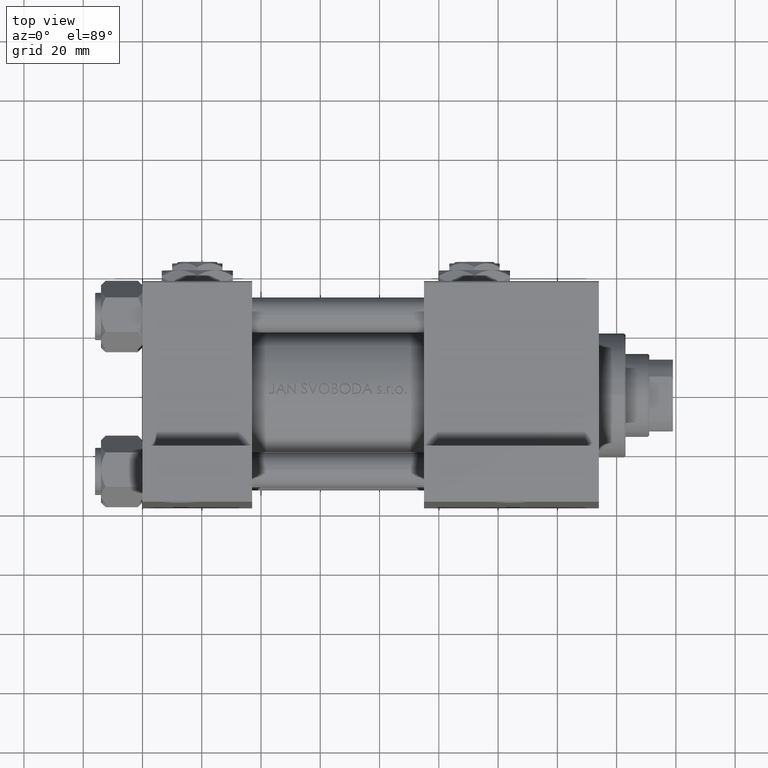
[diagram: clean part render]
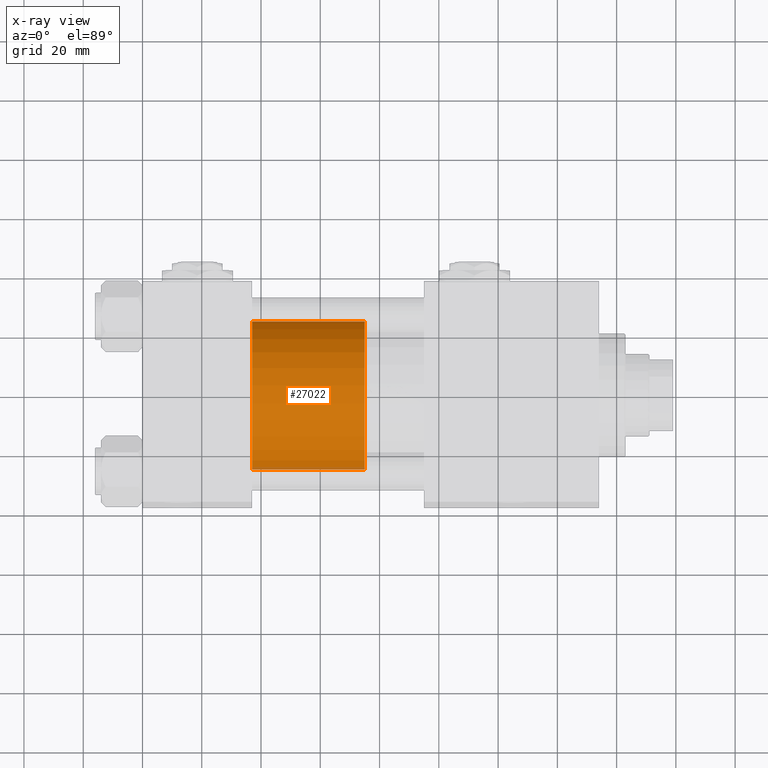
[diagram: x-ray — body ghosted, one internal face saturated and labeled with its STEP entity id]
A machine part, top view, then the same camera in x-ray: the body is ghosted and one INTERNAL B-rep face — a face not visible from any outside direction — is saturated and labeled: STEP entity #27022.
In plain terms, the highlighted cylindrical surface (partial cylindrical patch) has radius 25 mm, axis along (-1, 0, 0).
Its self-contained STEP definition (entity closure, byte-faithful):
#3266 = AXIS2_PLACEMENT_3D ( 'NONE', #31160, #26955, #3887 ) ;
#3887 = DIRECTION ( 'NONE',  ( 1.000000000000000000, 0.000000000000000000, 0.000000000000000000 ) ) ;
#3985 = EDGE_CURVE ( 'NONE', #11235, #26495, #34001, .T. ) ;
#9428 = EDGE_CURVE ( 'NONE', #26495, #36863, #45232, .T. ) ;
#11163 = CIRCLE ( 'NONE', #27790, 25.00000000000000000 ) ;
#11235 = VERTEX_POINT ( 'NONE', #24784 ) ;
#13615 = VECTOR ( 'NONE', #22166, 1000.000000000000000 ) ;
#15176 = DIRECTION ( 'NONE',  ( -0.000000000000000000, -0.000000000000000000, -1.000000000000000000 ) ) ;
#15187 = CARTESIAN_POINT ( 'NONE',  ( 0.000000000000000000, 0.000000000000000000, 38.00000000000000000 ) ) ;
#15993 = AXIS2_PLACEMENT_3D ( 'NONE', #22163, #26119, #48917 ) ;
#21404 = VECTOR ( 'NONE', #15176, 1000.000000000000000 ) ;
#22163 = CARTESIAN_POINT ( 'NONE',  ( 0.000000000000000000, 0.000000000000000000, 38.00000000000000000 ) ) ;
#22166 = DIRECTION ( 'NONE',  ( -0.000000000000000000, -0.000000000000000000, -1.000000000000000000 ) ) ;
#22842 = CARTESIAN_POINT ( 'NONE',  ( 25.00000000000000000, 3.061616997868383043E-15, 0.000000000000000000 ) ) ;
#23350 = DIRECTION ( 'NONE',  ( 1.000000000000000000, 0.000000000000000000, 0.000000000000000000 ) ) ;
#24784 = CARTESIAN_POINT ( 'NONE',  ( -25.00000000000000000, 0.000000000000000000, 38.00000000000000000 ) ) ;
#25880 = CARTESIAN_POINT ( 'NONE',  ( 25.00000000000000000, 3.061616997868383043E-15, 38.00000000000000000 ) ) ;
#26119 = DIRECTION ( 'NONE',  ( -0.000000000000000000, -0.000000000000000000, -1.000000000000000000 ) ) ;
#26495 = VERTEX_POINT ( 'NONE', #31442 ) ;
#26955 = DIRECTION ( 'NONE',  ( 0.000000000000000000, 0.000000000000000000, 1.000000000000000000 ) ) ;
#27022 = ADVANCED_FACE ( 'NONE', ( #29608 ), #40520, .T. ) ;
#27790 = AXIS2_PLACEMENT_3D ( 'NONE', #15187, #30298, #23350 ) ;
#28576 = EDGE_CURVE ( 'NONE', #11235, #44386, #11163, .T. ) ;
#29116 = EDGE_LOOP ( 'NONE', ( #38826, #35046, #48331, #30562 ) ) ;
#29608 = FACE_OUTER_BOUND ( 'NONE', #29116, .T. ) ;
#30298 = DIRECTION ( 'NONE',  ( 0.000000000000000000, 0.000000000000000000, 1.000000000000000000 ) ) ;
#30562 = ORIENTED_EDGE ( 'NONE', *, *, #9428, .T. ) ;
#30824 = EDGE_CURVE ( 'NONE', #44386, #36863, #48921, .T. ) ;
#31160 = CARTESIAN_POINT ( 'NONE',  ( 0.000000000000000000, 0.000000000000000000, 0.000000000000000000 ) ) ;
#31442 = CARTESIAN_POINT ( 'NONE',  ( -25.00000000000000000, 0.000000000000000000, 0.000000000000000000 ) ) ;
#34001 = LINE ( 'NONE', #42175, #21404 ) ;
#35046 = ORIENTED_EDGE ( 'NONE', *, *, #28576, .F. ) ;
#36863 = VERTEX_POINT ( 'NONE', #22842 ) ;
#38826 = ORIENTED_EDGE ( 'NONE', *, *, #30824, .F. ) ;
#40520 = CYLINDRICAL_SURFACE ( 'NONE', #15993, 25.00000000000000000 ) ;
#42175 = CARTESIAN_POINT ( 'NONE',  ( -25.00000000000000000, 0.000000000000000000, 38.00000000000000000 ) ) ;
#43304 = CARTESIAN_POINT ( 'NONE',  ( 25.00000000000000000, 3.061616997868383043E-15, 38.00000000000000000 ) ) ;
#44386 = VERTEX_POINT ( 'NONE', #43304 ) ;
#45232 = CIRCLE ( 'NONE', #3266, 25.00000000000000000 ) ;
#48331 = ORIENTED_EDGE ( 'NONE', *, *, #3985, .T. ) ;
#48917 = DIRECTION ( 'NONE',  ( -1.000000000000000000, 0.000000000000000000, 0.000000000000000000 ) ) ;
#48921 = LINE ( 'NONE', #25880, #13615 ) ;